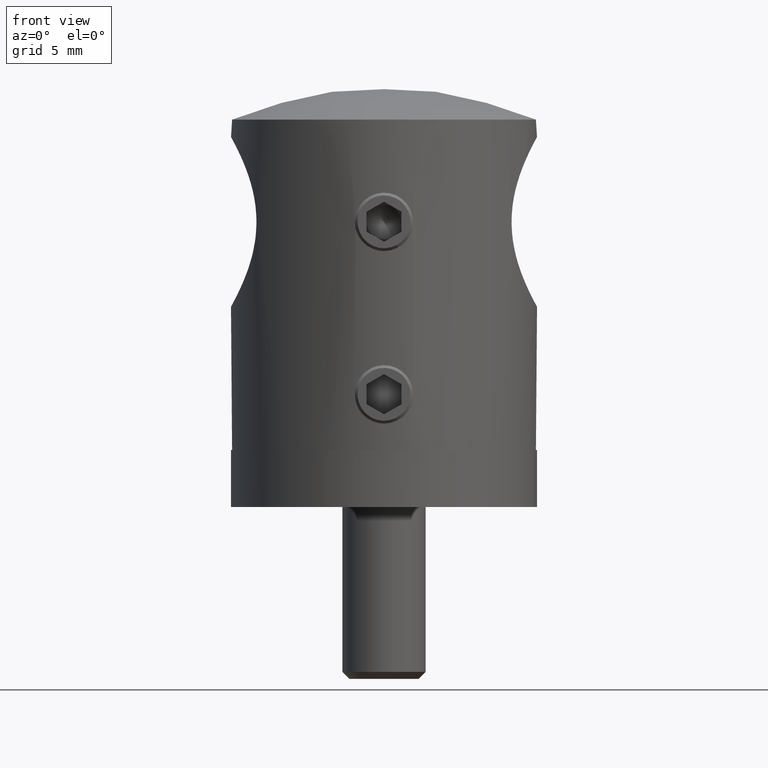
[diagram: clean part render]
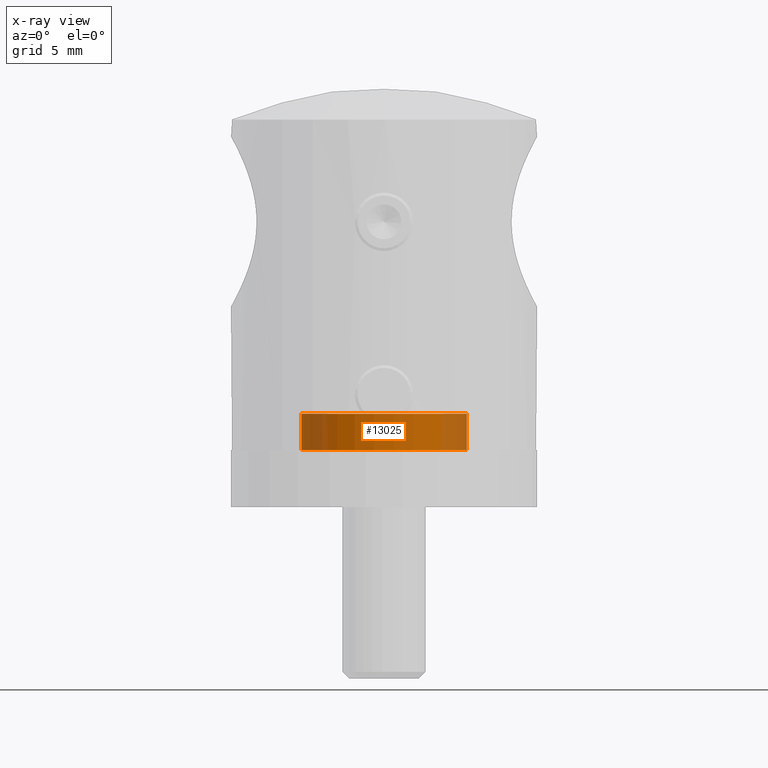
[diagram: x-ray — body ghosted, one internal face saturated and labeled with its STEP entity id]
A machine part, front view, then the same camera in x-ray: the body is ghosted and one INTERNAL B-rep face — a face not visible from any outside direction — is saturated and labeled: STEP entity #13025.
In plain terms, the highlighted cylindrical surface (bore or boss wall) has radius 5.95 mm, axis along (-0, -0, -1).
Its self-contained STEP definition (entity closure, byte-faithful):
#1233 = DIRECTION ( 'NONE',  ( -0.000000000000000000, -0.000000000000000000, -1.000000000000000000 ) ) ;
#1862 = VERTEX_POINT ( 'NONE', #20132 ) ;
#3326 = DIRECTION ( 'NONE',  ( -1.000000000000000000, 0.000000000000000000, 0.000000000000000000 ) ) ;
#4165 = AXIS2_PLACEMENT_3D ( 'NONE', #11384, #1233, #14785 ) ;
#4687 = CYLINDRICAL_SURFACE ( 'NONE', #20260, 5.949999999999998401 ) ;
#5091 = CARTESIAN_POINT ( 'NONE',  ( 0.000000000000000000, 0.000000000000000000, -4.899999999999999467 ) ) ;
#5686 = CIRCLE ( 'NONE', #11788, 5.949999999999998401 ) ;
#7263 = ORIENTED_EDGE ( 'NONE', *, *, #15270, .F. ) ;
#10592 = VERTEX_POINT ( 'NONE', #21691 ) ;
#11023 = FACE_OUTER_BOUND ( 'NONE', #19484, .T. ) ;
#11384 = CARTESIAN_POINT ( 'NONE',  ( 0.000000000000000000, 0.000000000000000000, -7.500000000000000000 ) ) ;
#11788 = AXIS2_PLACEMENT_3D ( 'NONE', #5091, #13604, #3326 ) ;
#13025 = ADVANCED_FACE ( 'NONE', ( #13690, #11023 ), #4687, .T. ) ;
#13604 = DIRECTION ( 'NONE',  ( -0.000000000000000000, -0.000000000000000000, -1.000000000000000000 ) ) ;
#13690 = FACE_OUTER_BOUND ( 'NONE', #20274, .T. ) ;
#14785 = DIRECTION ( 'NONE',  ( -1.000000000000000000, 0.000000000000000000, 0.000000000000000000 ) ) ;
#15270 = EDGE_CURVE ( 'NONE', #10592, #10592, #20486, .T. ) ;
#16027 = EDGE_CURVE ( 'NONE', #1862, #1862, #5686, .T. ) ;
#17536 = CARTESIAN_POINT ( 'NONE',  ( 0.000000000000000000, 0.000000000000000000, -11.14285714285700912 ) ) ;
#19326 = DIRECTION ( 'NONE',  ( -1.000000000000000000, 0.000000000000000000, 0.000000000000000000 ) ) ;
#19455 = ORIENTED_EDGE ( 'NONE', *, *, #16027, .T. ) ;
#19484 = EDGE_LOOP ( 'NONE', ( #7263 ) ) ;
#20132 = CARTESIAN_POINT ( 'NONE',  ( -5.949999999999998401, 0.000000000000000000, -4.899999999999999467 ) ) ;
#20260 = AXIS2_PLACEMENT_3D ( 'NONE', #17536, #20737, #19326 ) ;
#20274 = EDGE_LOOP ( 'NONE', ( #19455 ) ) ;
#20486 = CIRCLE ( 'NONE', #4165, 5.949999999999998401 ) ;
#20737 = DIRECTION ( 'NONE',  ( -0.000000000000000000, -0.000000000000000000, -1.000000000000000000 ) ) ;
#21691 = CARTESIAN_POINT ( 'NONE',  ( -5.949999999999998401, 0.000000000000000000, -7.500000000000000000 ) ) ;